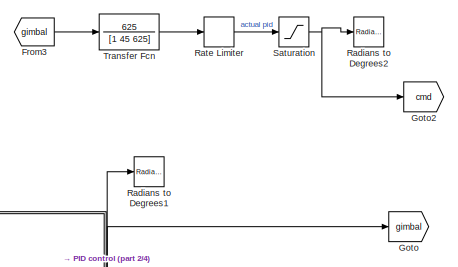
[diagram: root canvas - part 1/4, top right region]
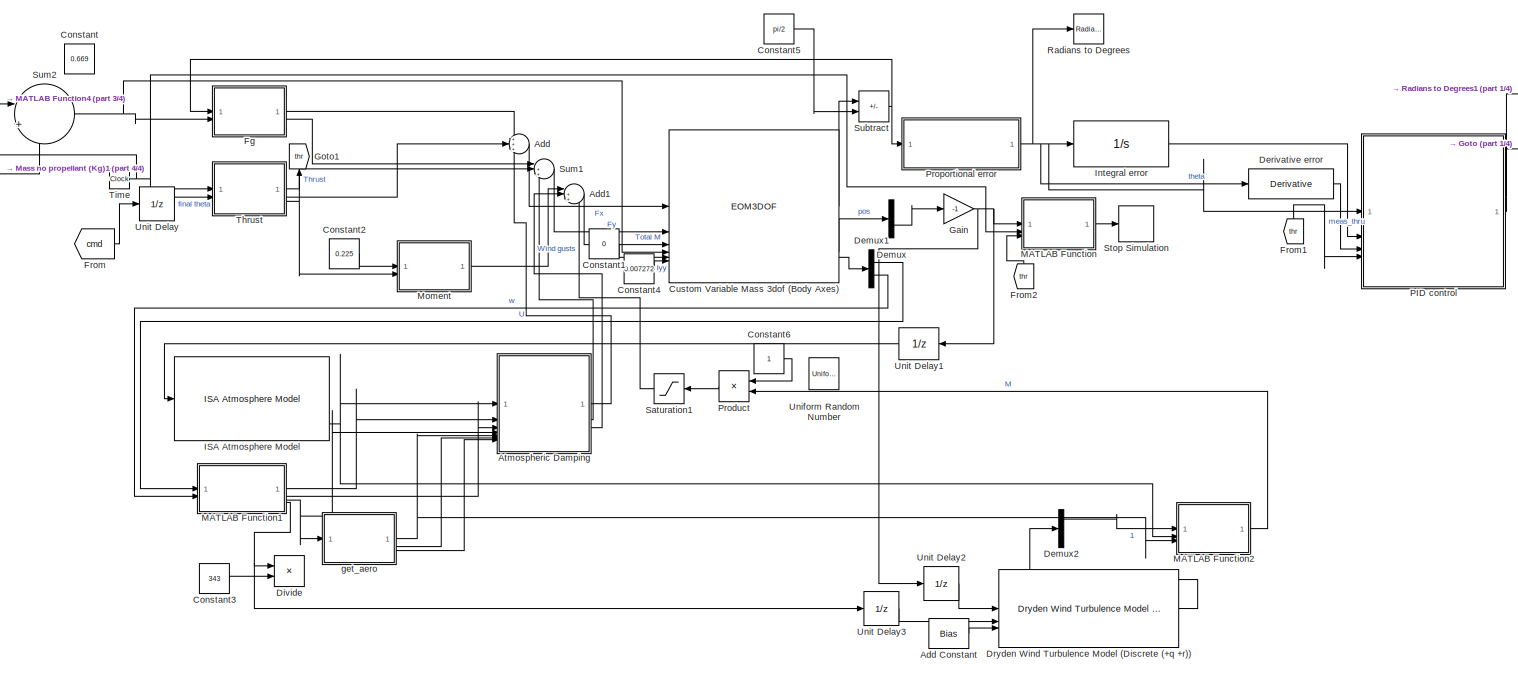
[diagram: root canvas - part 2/4, center side, full height]
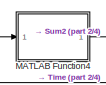
[diagram: root canvas - part 3/4, top left region]
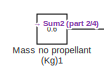
[diagram: root canvas - part 4/4, middle left region]
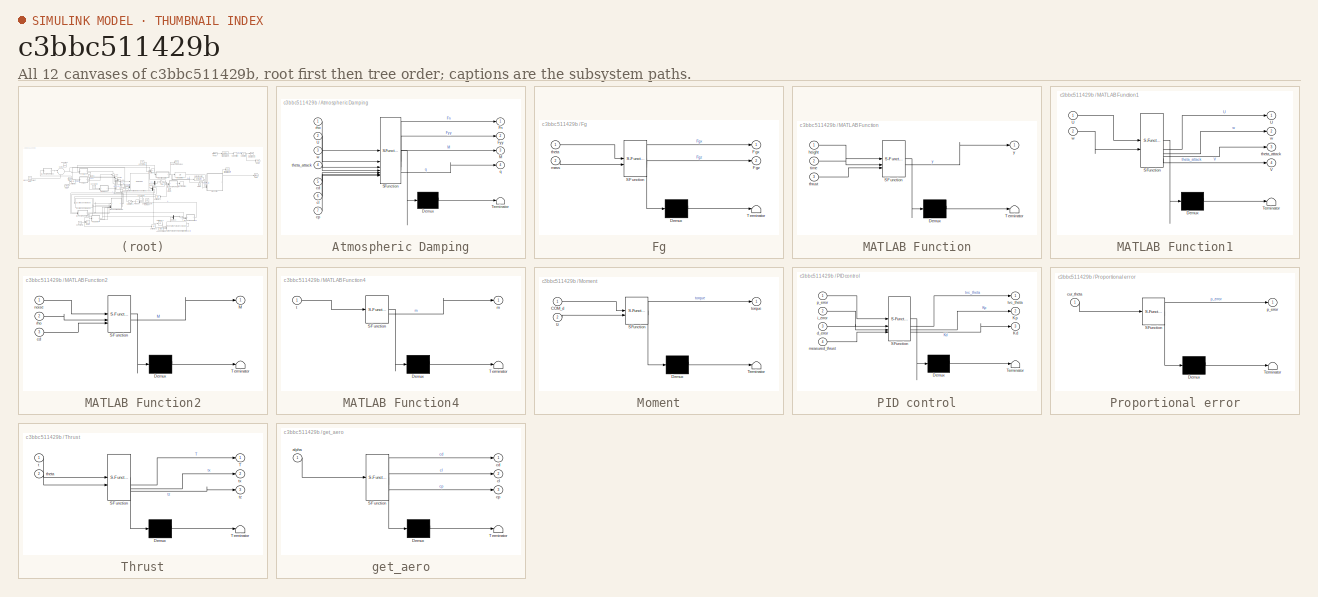
[diagram: thumbnail index - all 12 canvases of the model, root first then tree order]
MODEL slx_c3bbc511429b
KIND model
CONFIG AbsTol = auto
CONFIG EnableMultiTasking = off
CONFIG FixedStep = 0.01
CONFIG MaxStep = auto
CONFIG MinStep = auto
CONFIG RelTol = 1e-3
CONFIG SampleTimeConstraint = Unconstrained
CONFIG SolverName = FixedStepAuto
CONFIG StartTime = 0.0
CONFIG StopTime = 25
WORKSPACE source: mxarray member
WORKSPACE T_data = [16.81 22.34 22.23 21.49 20 20.21 18.09 15.74 13.4 10.85 10.21 8.94 ... (27 elements, 27x1)]
WORKSPACE aero_data: object (value not decoded)
WORKSPACE t_data = [0.01 0.03 0.11 0.26 0.37 0.47 0.67 0.99 1.31 1.81 2.49 3.13 ... (27 elements, 27x1)]
BLOCK [Sum] Add
  Inputs = +++
BLOCK [Bias] Add Constant
  Bias = eye(3)
  SaturateOnIntegerOverflow = off
BLOCK [Sum] Add1
  Inputs = |+++
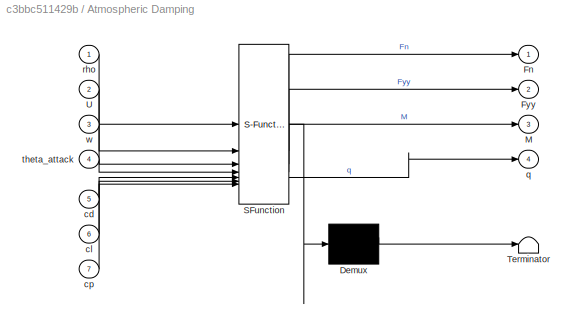
BLOCK [SubSystem] Atmospheric Damping
  ErrorFcn = Stateflow.Translate.translate
  PermitHierarchicalResolution = ExplicitOnly
  SFBlockType = MATLAB Function
  TreatAsAtomicUnit = on
BLOCK [Demux] Atmospheric Damping/ Demux 
  Outputs = 1
BLOCK [S-Function] Atmospheric Damping/ SFunction 
  EnableBusSupport = off
  FunctionName = sf_sfun
  PortCounts = [7 5]
  SFcnIsStateOwnerBlock = off
  SFunctionDeploymentMode = off
  Tag = Stateflow S-Function 8
BLOCK [Terminator] Atmospheric Damping/ Terminator 
BLOCK [Outport] Atmospheric Damping/Fn
BLOCK [Outport] Atmospheric Damping/Fyy
  Port = 2
BLOCK [Outport] Atmospheric Damping/M
  Port = 3
BLOCK [Inport] Atmospheric Damping/U
  Port = 2
BLOCK [Inport] Atmospheric Damping/cd
  Port = 5
BLOCK [Inport] Atmospheric Damping/cl
  Port = 6
BLOCK [Inport] Atmospheric Damping/cp
  Port = 7
BLOCK [Outport] Atmospheric Damping/q
  Port = 4
BLOCK [Inport] Atmospheric Damping/rho
BLOCK [Inport] Atmospheric Damping/theta_attack
  Port = 4
BLOCK [Inport] Atmospheric Damping/w
  Port = 3
BLOCK [Constant] Constant
  Value = 0.669
BLOCK [Constant] Constant1
  Value = 0
BLOCK [Constant] Constant2
  Value = 0.225
BLOCK [Constant] Constant3
  Value = 343
BLOCK [Constant] Constant4
  Value = 0.007272
  VectorParams1D = off
BLOCK [Constant] Constant5
  Value = pi/2
BLOCK [Constant] Constant6
BLOCK [EOM3DOF] Custom Variable Mass 3dof (Body Axes)
  g = 0
  mtype = Custom Variable
  theta_ini = deg2rad(93)
  v_ini = .01
BLOCK [Demux] Demux
  Outputs = 2
BLOCK [Demux] Demux1
  Outputs = 2
BLOCK [Demux] Demux2
  Outputs = 3
BLOCK [Derivative] Derivative error
BLOCK [Product] Divide
  Inputs = */
BLOCK [Reference] Dryden Wind Turbulence Model (Discrete (+q +r))  REF=aerolibwind2/Dryden Wind Turbulence Model 
(Continuous (+q -r))
  LibrarySourceBlock = aerolibwind2/Dryden Wind Turbulence Model \n(Discrete (+q +r))
  SourceBlock = aerolibwind2/Dryden Wind Turbulence Model \n(Continuous (+q -r))
  SourceType = Wind Turbulence Model
BLOCK [SubSystem] Fg
  ErrorFcn = Stateflow.Translate.translate
  PermitHierarchicalResolution = ExplicitOnly
  SFBlockType = MATLAB Function
  TreatAsAtomicUnit = on
BLOCK [Demux] Fg/ Demux 
  Outputs = 1
BLOCK [S-Function] Fg/ SFunction 
  EnableBusSupport = off
  FunctionName = sf_sfun
  PortCounts = [2 3]
  SFcnIsStateOwnerBlock = off
  SFunctionDeploymentMode = off
  Tag = Stateflow S-Function 4
BLOCK [Terminator] Fg/ Terminator 
BLOCK [Outport] Fg/Fgx
BLOCK [Outport] Fg/Fgz
  Port = 2
BLOCK [Inport] Fg/mass
  Port = 2
BLOCK [Inport] Fg/theta
BLOCK [From] From
  GotoTag = cmd
BLOCK [From] From1
  GotoTag = thr
  NameLocation = right
BLOCK [From] From2
  GotoTag = thr
  NameLocation = right
BLOCK [From] From3
  GotoTag = gimbal
BLOCK [Gain] Gain
  Gain = -1
BLOCK [Goto] Goto
  GotoTag = gimbal
BLOCK [Goto] Goto1
  GotoTag = thr
  NameLocation = right
BLOCK [Goto] Goto2
  GotoTag = cmd
BLOCK [Reference] ISA Atmosphere Model  REF=aerolibatmos2/ISA Atmosphere Model
  SourceBlock = aerolibatmos2/ISA Atmosphere Model
  SourceType = International Standard Atmosphere Model
BLOCK [Integrator] Integral error
  ContinuousStateAttributes = 'error'
  LimitOutput = on
  LowerSaturationLimit = -0.5
  UpperSaturationLimit = 0.5
BLOCK [SubSystem] MATLAB Function
  ErrorFcn = Stateflow.Translate.translate
  PermitHierarchicalResolution = ExplicitOnly
  SFBlockType = MATLAB Function
  TreatAsAtomicUnit = on
BLOCK [Demux] MATLAB Function/ Demux 
  Outputs = 1
BLOCK [S-Function] MATLAB Function/ SFunction 
  EnableBusSupport = off
  FunctionName = sf_sfun
  PortCounts = [3 2]
  SFcnIsStateOwnerBlock = off
  SFunctionDeploymentMode = off
  Tag = Stateflow S-Function 3
BLOCK [Terminator] MATLAB Function/ Terminator 
BLOCK [Inport] MATLAB Function/height
BLOCK [Inport] MATLAB Function/thrust
  Port = 3
BLOCK [Inport] MATLAB Function/time
  Port = 2
BLOCK [Outport] MATLAB Function/y
BLOCK [SubSystem] MATLAB Function1
  ErrorFcn = Stateflow.Translate.translate
  PermitHierarchicalResolution = ExplicitOnly
  SFBlockType = MATLAB Function
  TreatAsAtomicUnit = on
BLOCK [Demux] MATLAB Function1/ Demux 
  Outputs = 1
BLOCK [S-Function] MATLAB Function1/ SFunction 
  EnableBusSupport = off
  FunctionName = sf_sfun
  PortCounts = [2 5]
  SFcnIsStateOwnerBlock = off
  SFunctionDeploymentMode = off
  Tag = Stateflow S-Function 7
BLOCK [Terminator] MATLAB Function1/ Terminator 
BLOCK [Outport] MATLAB Function1/U
BLOCK [Inport] MATLAB Function1/U 
BLOCK [Outport] MATLAB Function1/V
  Port = 4
BLOCK [Outport] MATLAB Function1/theta_attack
  Port = 3
BLOCK [Outport] MATLAB Function1/w
  Port = 2
BLOCK [Inport] MATLAB Function1/w 
  Port = 2
BLOCK [SubSystem] MATLAB Function2
  ErrorFcn = Stateflow.Translate.translate
  PermitHierarchicalResolution = ExplicitOnly
  SFBlockType = MATLAB Function
  TreatAsAtomicUnit = on
BLOCK [Demux] MATLAB Function2/ Demux 
  Outputs = 1
BLOCK [S-Function] MATLAB Function2/ SFunction 
  EnableBusSupport = off
  FunctionName = sf_sfun
  PortCounts = [3 2]
  SFcnIsStateOwnerBlock = off
  SFunctionDeploymentMode = off
  Tag = Stateflow S-Function 10
BLOCK [Terminator] MATLAB Function2/ Terminator 
BLOCK [Outport] MATLAB Function2/M
BLOCK [Inport] MATLAB Function2/cd
  Port = 3
BLOCK [Inport] MATLAB Function2/noise
BLOCK [Inport] MATLAB Function2/rho
  Port = 2
BLOCK [SubSystem] MATLAB Function4
  ErrorFcn = Stateflow.Translate.translate
  PermitHierarchicalResolution = ExplicitOnly
  SFBlockType = MATLAB Function
  TreatAsAtomicUnit = on
BLOCK [Demux] MATLAB Function4/ Demux 
  Outputs = 1
BLOCK [S-Function] MATLAB Function4/ SFunction 
  EnableBusSupport = off
  FunctionName = sf_sfun
  PortCounts = [1 2]
  SFcnIsStateOwnerBlock = off
  SFunctionDeploymentMode = off
  Tag = Stateflow S-Function 12
BLOCK [Terminator] MATLAB Function4/ Terminator 
BLOCK [Outport] MATLAB Function4/m
BLOCK [Inport] MATLAB Function4/t
BLOCK [Constant] Mass no propellant (Kg)1
  Value = 0.6
BLOCK [SubSystem] Moment
  ErrorFcn = Stateflow.Translate.translate
  PermitHierarchicalResolution = ExplicitOnly
  SFBlockType = MATLAB Function
  TreatAsAtomicUnit = on
BLOCK [Demux] Moment/ Demux 
  Outputs = 1
BLOCK [S-Function] Moment/ SFunction 
  EnableBusSupport = off
  FunctionName = sf_sfun
  PortCounts = [2 2]
  SFcnIsStateOwnerBlock = off
  SFunctionDeploymentMode = off
  Tag = Stateflow S-Function 1
BLOCK [Terminator] Moment/ Terminator 
BLOCK [Inport] Moment/COM_d
BLOCK [Outport] Moment/torque
BLOCK [Inport] Moment/tz
  Port = 2
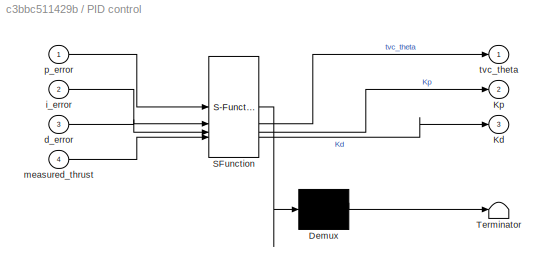
BLOCK [SubSystem] PID control
  ErrorFcn = Stateflow.Translate.translate
  PermitHierarchicalResolution = ExplicitOnly
  SFBlockType = MATLAB Function
  TreatAsAtomicUnit = on
BLOCK [Demux] PID control/ Demux 
  Outputs = 1
BLOCK [S-Function] PID control/ SFunction 
  EnableBusSupport = off
  FunctionName = sf_sfun
  PortCounts = [4 4]
  SFcnIsStateOwnerBlock = off
  SFunctionDeploymentMode = off
  Tag = Stateflow S-Function 6
BLOCK [Terminator] PID control/ Terminator 
BLOCK [Outport] PID control/Kd
  Port = 3
BLOCK [Outport] PID control/Kp
  Port = 2
BLOCK [Inport] PID control/d_error
  Port = 3
BLOCK [Inport] PID control/i_error
  Port = 2
BLOCK [Inport] PID control/measured_thrust
  Port = 4
BLOCK [Inport] PID control/p_error
BLOCK [Outport] PID control/tvc_theta
BLOCK [Product] Product
BLOCK [SubSystem] Proportional error
  ErrorFcn = Stateflow.Translate.translate
  PermitHierarchicalResolution = ExplicitOnly
  SFBlockType = MATLAB Function
  TreatAsAtomicUnit = on
BLOCK [Demux] Proportional error/ Demux 
  Outputs = 1
BLOCK [S-Function] Proportional error/ SFunction 
  EnableBusSupport = off
  FunctionName = sf_sfun
  PortCounts = [1 2]
  SFcnIsStateOwnerBlock = off
  SFunctionDeploymentMode = off
  Tag = Stateflow S-Function 5
BLOCK [Terminator] Proportional error/ Terminator 
BLOCK [Inport] Proportional error/cur_theta
BLOCK [Outport] Proportional error/p_error
BLOCK [Reference] Radians to Degrees  REF=simulink_extras/Transformations/Radians
to Degrees
  SourceBlock = simulink_extras/Transformations/Radians\nto Degrees
  SourceType = RadiansToDegrees
BLOCK [Reference] Radians to Degrees1  REF=simulink_extras/Transformations/Radians
to Degrees
  SourceBlock = simulink_extras/Transformations/Radians\nto Degrees
  SourceType = RadiansToDegrees
BLOCK [Reference] Radians to Degrees2  REF=simulink_extras/Transformations/Radians
to Degrees
  SourceBlock = simulink_extras/Transformations/Radians\nto Degrees
  SourceType = RadiansToDegrees
BLOCK [RateLimiter] Rate Limiter
  FallingSlewLimit = -5
  RisingSlewLimit = 5
  SampleTimeMode = inherited
BLOCK [Saturate] Saturation
  LowerLimit = -0.1
  UpperLimit = 0.1
BLOCK [Saturate] Saturation1
  LowerLimit = -0.01
  UpperLimit = .01
BLOCK [Stop] Stop Simulation
BLOCK [Sum] Subtract
  IconShape = rectangular
  Inputs = +-
BLOCK [Sum] Sum1
  Inputs = |+++
BLOCK [Sum] Sum2
  Inputs = |++
BLOCK [SubSystem] Thrust
  ErrorFcn = Stateflow.Translate.translate
  PermitHierarchicalResolution = ExplicitOnly
  SFBlockType = MATLAB Function
  TreatAsAtomicUnit = on
BLOCK [Demux] Thrust/ Demux 
  Outputs = 1
BLOCK [S-Function] Thrust/ SFunction 
  EnableBusSupport = off
  FunctionName = sf_sfun
  PortCounts = [2 4]
  SFcnIsStateOwnerBlock = off
  SFunctionDeploymentMode = off
  Tag = Stateflow S-Function 2
BLOCK [Terminator] Thrust/ Terminator 
BLOCK [Outport] Thrust/T
BLOCK [Inport] Thrust/t
BLOCK [Inport] Thrust/theta
  Port = 2
BLOCK [Outport] Thrust/tx
  Port = 2
BLOCK [Outport] Thrust/tz
  Port = 3
BLOCK [Clock] Time
  NameLocation = left
BLOCK [TransferFcn] Transfer Fcn
  Denominator = [1 45 625]
  Numerator = 625
BLOCK [UniformRandomNumber] Uniform Random Number
  SampleTime = 1
  Seed = randi(1000)
BLOCK [UnitDelay] Unit Delay
  HasFrameUpgradeWarning = on
  SampleTime = -1
BLOCK [UnitDelay] Unit Delay1
  HasFrameUpgradeWarning = on
  SampleTime = -1
BLOCK [UnitDelay] Unit Delay2
  HasFrameUpgradeWarning = on
  SampleTime = -1
BLOCK [UnitDelay] Unit Delay3
  HasFrameUpgradeWarning = on
  SampleTime = -1
BLOCK [SubSystem] get_aero
  ErrorFcn = Stateflow.Translate.translate
  PermitHierarchicalResolution = ExplicitOnly
  SFBlockType = MATLAB Function
  TreatAsAtomicUnit = on
BLOCK [Demux] get_aero/ Demux 
  Outputs = 1
BLOCK [S-Function] get_aero/ SFunction 
  EnableBusSupport = off
  FunctionName = sf_sfun
  PortCounts = [1 4]
  SFcnIsStateOwnerBlock = off
  SFunctionDeploymentMode = off
  Tag = Stateflow S-Function 9
BLOCK [Terminator] get_aero/ Terminator 
BLOCK [Inport] get_aero/alpha
BLOCK [Outport] get_aero/cd
BLOCK [Outport] get_aero/cl
  Port = 2
BLOCK [Outport] get_aero/cp
  Port = 3
LINE Add Constant:1 -> Dryden Wind Turbulence Model (Discrete (+q +r)):3
LINE Add1:1 -> Custom Variable Mass 3dof (Body Axes):3
LINE Add:1 -> Custom Variable Mass 3dof (Body Axes):1
LINE Atmospheric Damping:1 -> Add:3
LINE Atmospheric Damping:2 -> Sum1:3
LINE Atmospheric Damping:3 -> Add1:2
LINE Constant1:1 -> Custom Variable Mass 3dof (Body Axes):5
LINE Constant2:1 -> Moment:1
LINE Constant3:1 -> Divide:2
LINE Constant4:1 -> Custom Variable Mass 3dof (Body Axes):6
LINE Constant5:1 -> Subtract:2
LINE Constant6:1 -> Product:1
LINE Custom Variable Mass 3dof (Body Axes):1 -> Subtract:1
LINE Custom Variable Mass 3dof (Body Axes):4 -> Demux:1
LINE Custom Variable Mass 3dof (Body Axes):5 -> Demux1:1
LINE Demux1:1 -> MATLAB Function1:1
LINE Demux1:2 -> MATLAB Function1:2
LINE Demux2:1 -> MATLAB Function2:1
LINE Demux:2 -> Gain:1
LINE Derivative error:1 -> PID control:3
LINE Dryden Wind Turbulence Model (Discrete (+q +r)):1 -> Demux2:1
LINE Fg:1 -> Add:1
LINE Fg:2 -> Sum1:1
LINE From1:1 -> PID control:4
LINE From2:1 -> MATLAB Function:3
LINE From3:1 -> Transfer Fcn:1
LINE From:1 -> Unit Delay:1
NET Gain:1 -> MATLAB Function:1, Unit Delay1:1, Unit Delay2:1
NET ISA Atmosphere Model:4 -> Atmospheric Damping:1, MATLAB Function2:2
LINE Integral error:1 -> PID control:2
LINE MATLAB Function1:1 -> Atmospheric Damping:2
LINE MATLAB Function1:2 -> Atmospheric Damping:3
NET MATLAB Function1:3 -> Atmospheric Damping:4, get_aero:1
NET MATLAB Function1:4 -> Divide:1, Unit Delay3:1
LINE MATLAB Function2:1 -> Product:2
LINE MATLAB Function4:1 -> Sum2:1
LINE MATLAB Function:1 -> Stop Simulation:1
LINE Mass no propellant (Kg)1:1 -> Sum2:2
LINE Moment:1 -> Add1:1
NET PID control:1 -> Goto:1, Radians to Degrees1:1
LINE Product:1 -> Saturation1:1
NET Proportional error:1 -> Derivative error:1, Integral error:1, PID control:1, Radians to Degrees:1
LINE Rate Limiter:1 -> Saturation:1
LINE Saturation1:1 -> Add1:3
NET Saturation:1 -> Goto2:1, Radians to Degrees2:1
NET Subtract:1 -> Fg:1, Proportional error:1
LINE Sum1:1 -> Custom Variable Mass 3dof (Body Axes):2
NET Sum2:1 -> Custom Variable Mass 3dof (Body Axes):4, Fg:2
LINE Thrust:1 -> Goto1:1
LINE Thrust:2 -> Add:2
NET Thrust:3 -> Moment:2, Sum1:2
NET Time:1 -> MATLAB Function4:1, MATLAB Function:2, Thrust:1
LINE Transfer Fcn:1 -> Rate Limiter:1
LINE Unit Delay1:1 -> ISA Atmosphere Model:1
LINE Unit Delay2:1 -> Dryden Wind Turbulence Model (Discrete (+q +r)):1
LINE Unit Delay3:1 -> Dryden Wind Turbulence Model (Discrete (+q +r)):2
LINE Unit Delay:1 -> Thrust:2
NET get_aero:1 -> Atmospheric Damping:5, MATLAB Function2:3
LINE get_aero:2 -> Atmospheric Damping:6
LINE get_aero:3 -> Atmospheric Damping:7
note: NET lines group one-source signal fan-out (src -> all destinations, sorted); 1:1 wires keep LINE
CHART MATLAB Function2 states=1 transitions=1
  STATE_LABEL 'eML_blk_kernel()'
  STATE_LABEL 'SCRIPT:\nfunction M = fcn(noise, rho, cd)\nA = 0.079 * 0.762;\nF = 1/2 * noise^2 * rho * cd * A;\nM = 0.225 * F;\n'
CHART MATLAB Function4 states=1 transitions=1
  STATE_LABEL 'eML_blk_kernel()'
  STATE_LABEL 'SCRIPT:\nfunction m = propellantmass(t)\n    %#codegen\n    m = ((0.3567 * t^2) - (8.072 *t) + 39.18)/1000;\n    end'
CHART Moment states=1 transitions=1
  STATE_LABEL 'eML_blk_kernel()'
  STATE_LABEL 'SCRIPT:\nfunction torque = fcn(COM_d, tz)\n\ntorque = COM_d * tz;'
CHART Thrust states=1 transitions=1
  STATE_LABEL 'eML_blk_kernel()'
  STATE_LABEL "SCRIPT:\nfunction [T, tx, tz] = fcn(t, theta)\n    persistent thrust_interp;\n    \n    if isempty(thrust_interp)\n        loadedData = load('interp_thrust_data.mat'); \n        disp(loadedData)\n        t_data = loadedData.t_data;\n        T_data = loadedData.T_data; \n\n        thrust_interp = @(t) interp1(t_data, T_data, t, 'pchip', 'extrap');\n    end\n\n    burnout_time = 7.05;\n    if t < burnout_time\n   ...<+118ch>"
CHART MATLAB Function states=1 transitions=1
  STATE_LABEL 'eML_blk_kernel()'
  STATE_LABEL 'SCRIPT:\nfunction y = fcn(height, time, thrust)\n\nif (time > 1 && height < 0) || (time > 1 && thrust <= 0)\n    y = 1;\nelse\n    y = 0;\nend'
CHART Fg states=1 transitions=1
  STATE_LABEL 'eML_blk_kernel()'
  STATE_LABEL 'SCRIPT:\nfunction [Fgx, Fgz]= fcn(theta, mass)\n\nFgx = mass * -cos(theta) * 9.8;\nFgz = mass * sin(theta) * -9.8;\n'
CHART Proportional error states=1 transitions=1
  STATE_LABEL 'eML_blk_kernel()'
  STATE_LABEL 'SCRIPT:\nfunction p_error = fcn(cur_theta)\n    p_error = cur_theta;\nend\n'
CHART PID control states=1 transitions=1
  STATE_LABEL 'eML_blk_kernel()'
  STATE_LABEL "SCRIPT:\nfunction [tvc_theta, Kp, Kd] = fcn(p_error, i_error, d_error, measured_thrust)\n    \n    %     loadedSchedule = load('interp_thrust_data.mat'); \n    \n    T_array = [0, 9, 11, 24];\n    Kp_array = [0.19, 0.15, 0.13, 0.1];\n    Kd_array = [0.05, 0.04, 0.03, 0.02];\n    T_current = measured_thrust;\n    \n    Kp = interp1(T_array, Kp_array, T_current, 'linear', 'extrap');\n    Kd = interp1(T_array, ...<+198ch>"
CHART MATLAB Function1 states=1 transitions=1
  STATE_LABEL 'eML_blk_kernel()'
  STATE_LABEL 'SCRIPT:\nfunction [U, w, theta_attack, V] = fcn(U, w)\n\ntheta_attack = atan(w/U);\nV = sqrt(U^2 + w^2);'
CHART Atmospheric Damping states=1 transitions=1
  STATE_LABEL 'eML_blk_kernel()'
  STATE_LABEL 'SCRIPT:\nfunction [Fn, Fyy, M, q] = fcn(rho, U, w, theta_attack, cd, cl, cp)\n    V = sqrt(U^2 + w^2);\n\n    Sref = pi * (0.0762/2)^2;\n\n    q = 1/2 * rho * V^2;\n\n    L = q * cl * Sref;\n    D = q * cd * Sref;\n\n    Xw = -D;\n    Zw = -L;\n    \n    cg = 0.3302; % from nosecone\n\n    Fn =  cos(theta_attack)*Xw - sin(theta_attack)*Zw\n    Fyy =  sin(theta_attack)*Xw + cos(theta_attack)*Zw\n    M = Fyy * (cp - ...<+8ch>'
CHART get_aero states=1 transitions=1
  STATE_LABEL 'eML_blk_kernel()'
  STATE_LABEL 'SCRIPT:\nfunction [cd, cl, cp] = get_aero(alpha)\n\n    S = load("alpha_interp.mat");  \n    Alpha = S.aero_data.Alpha;\n    CD_full = S.aero_data.CD;\n    CL_full = S.aero_data.CL;\n    CP_full = S.aero_data.CP;\n\n    cd = interp1(Alpha, CD_full, alpha, \'linear\', \'extrap\');\n    cl = interp1(Alpha, CL_full, alpha, \'linear\', \'extrap\');\n    cp = interp1(Alpha, CP_full, alpha, \'linear\', \'extrap\');\n    cp = c...<+15ch>'
CHART  states=0 transitions=0
CHART  states=0 transitions=0
CHART  states=0 transitions=0
CHART  states=0 transitions=0
CHART  states=0 transitions=0
CHART  states=0 transitions=0
CHART  states=0 transitions=0
CHART  states=0 transitions=0
CHART  states=0 transitions=0
CHART  states=0 transitions=0
CHART  states=0 transitions=0
